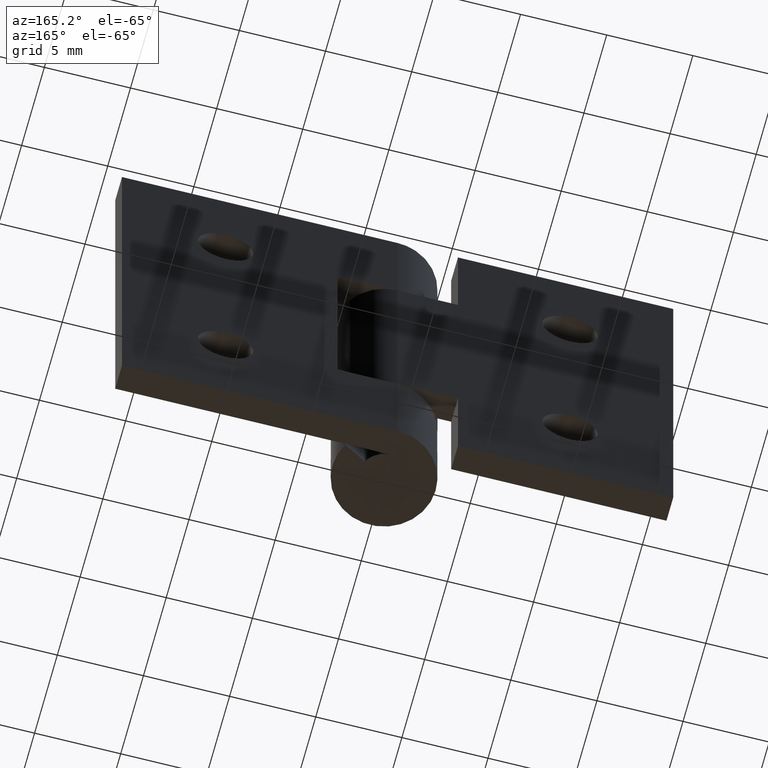
[diagram: clean part render]
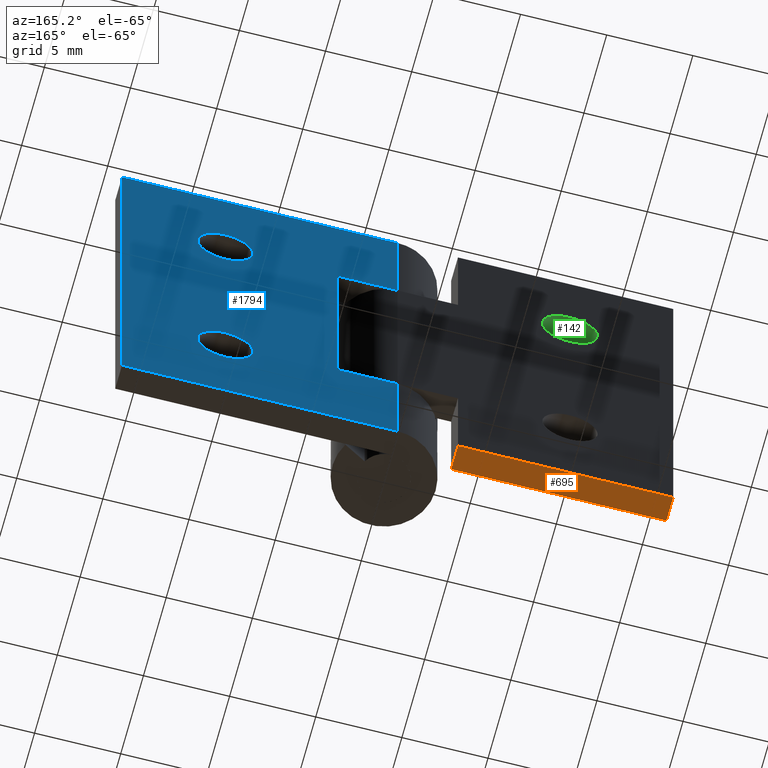
[diagram: same view with three faces highlighted in distinct colors, each labeled with its STEP entity id]
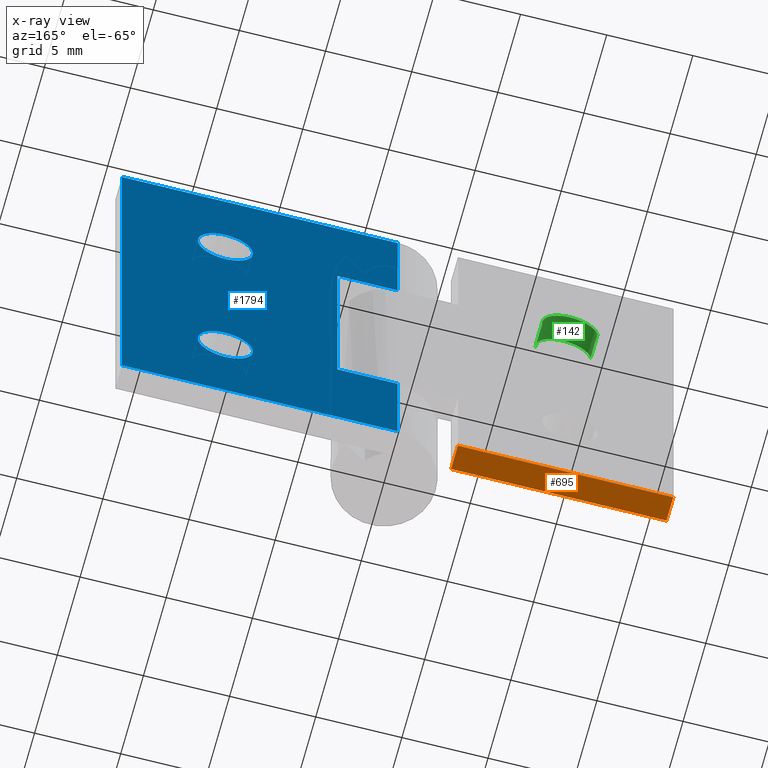
[diagram: x-ray of the same camera — body ghosted, the three highlighted faces saturated]
A machine part, auxiliary view with three faces highlighted in distinct colors.
The next image is the same camera in x-ray (body ghosted, the three faces saturated) — at least one of them is partly hidden behind the body in this view.
Their STEP definitions:

[orange] entity #695 — the highlighted face is a freeform B-spline surface patch.
#415=CARTESIAN_POINT('',(-3.500000000000000,1.500000000000000,0.0));
#416=VERTEX_POINT('',#415);
#422=CARTESIAN_POINT('',(-3.500000000000000,3.0,0.0));
#423=VERTEX_POINT('',#422);
#424=CARTESIAN_POINT('',(-3.500000000000000,1.500000000000000,0.0));
#425=CARTESIAN_POINT('',(-3.500000000000000,3.0,0.0));
#426=QUASI_UNIFORM_CURVE('',1,(#424,#425),.UNSPECIFIED.,.F.,.U.);
#427=EDGE_CURVE('',#416,#423,#426,.T.);
#625=CARTESIAN_POINT('',(-16.0,3.0,0.0));
#626=VERTEX_POINT('',#625);
#627=CARTESIAN_POINT('',(-16.0,1.500000000000000,0.0));
#628=VERTEX_POINT('',#627);
#629=CARTESIAN_POINT('',(-16.0,3.0,0.0));
#630=CARTESIAN_POINT('',(-16.0,1.500000000000000,0.0));
#631=QUASI_UNIFORM_CURVE('',1,(#629,#630),.UNSPECIFIED.,.F.,.U.);
#632=EDGE_CURVE('',#626,#628,#631,.T.);
#676=CARTESIAN_POINT('',(-16.624374975772579,1.425075002907291,0.0));
#677=CARTESIAN_POINT('',(-2.875624688951299,1.425075002907291,0.0));
#678=CARTESIAN_POINT('',(-16.624374975772579,3.074925037325845,0.0));
#679=CARTESIAN_POINT('',(-2.875624688951299,3.074925037325845,0.0));
#680=B_SPLINE_SURFACE_WITH_KNOTS('',1,1,((#676,#678),(#677,#679)),.UNSPECIFIED.,.F.,.F.,.U.,(2,2),(2,2),(0.0,13.748750286821281),(0.041708334948495,0.958291687403247),.UNSPECIFIED.);
#681=CARTESIAN_POINT('',(-3.500000000000000,3.0,0.0));
#682=CARTESIAN_POINT('',(-16.0,3.0,0.0));
#683=QUASI_UNIFORM_CURVE('',1,(#681,#682),.UNSPECIFIED.,.F.,.U.);
#684=EDGE_CURVE('',#423,#626,#683,.T.);
#685=ORIENTED_EDGE('',*,*,#684,.F.);
#686=ORIENTED_EDGE('',*,*,#427,.F.);
#687=CARTESIAN_POINT('',(-16.0,1.500000000000000,0.0));
#688=CARTESIAN_POINT('',(-3.500000000000000,1.500000000000000,0.0));
#689=QUASI_UNIFORM_CURVE('',1,(#687,#688),.UNSPECIFIED.,.F.,.U.);
#690=EDGE_CURVE('',#628,#416,#689,.T.);
#691=ORIENTED_EDGE('',*,*,#690,.F.);
#692=ORIENTED_EDGE('',*,*,#632,.F.);
#693=EDGE_LOOP('',(#685,#686,#691,#692));
#694=FACE_OUTER_BOUND('',#693,.T.);
#695=ADVANCED_FACE('',(#694),#680,.F.);

[blue] entity #1794 — the highlighted face is a freeform B-spline surface patch.
#897=CARTESIAN_POINT('',(10.0,3.0,20.600000000000001));
#898=VERTEX_POINT('',#897);
#899=CARTESIAN_POINT('',(8.404932266030210,3.0,19.125534553205380));
#900=VERTEX_POINT('',#899);
#901=CARTESIAN_POINT('',(10.0,3.0,20.600000000000001));
#902=CARTESIAN_POINT('',(8.520975213422830,3.0,20.599999999999998));
#903=CARTESIAN_POINT('',(8.404932266030210,3.000000000000000,19.125534553205387));
#911=(BOUNDED_CURVE()B_SPLINE_CURVE(2,(#901,#902,#903),.UNSPECIFIED.,.F.,.U.)B_SPLINE_CURVE_WITH_KNOTS((3,3),(0.0,0.236331300623990),.UNSPECIFIED.)CURVE()GEOMETRIC_REPRESENTATION_ITEM()RATIONAL_B_SPLINE_CURVE((1.0,0.723120658615480,0.969723356153499))REPRESENTATION_ITEM(''));
#912=EDGE_CURVE('',#898,#900,#911,.T.);
#914=CARTESIAN_POINT('',(11.595067733969790,3.0,18.874465446794620));
#915=VERTEX_POINT('',#914);
#916=CARTESIAN_POINT('',(11.595067733969787,3.000000000000000,18.874465446794613));
#917=CARTESIAN_POINT('',(11.600000000000003,3.0,18.937135828746705));
#918=CARTESIAN_POINT('',(11.600000000000000,3.0,19.0));
#919=CARTESIAN_POINT('',(11.600000000000001,3.0,20.600000000000001));
#920=CARTESIAN_POINT('',(10.0,3.0,20.600000000000001));
#928=(BOUNDED_CURVE()B_SPLINE_CURVE(2,(#916,#917,#918,#919,#920),.UNSPECIFIED.,.F.,.U.)B_SPLINE_CURVE_WITH_KNOTS((3,2,3),(0.736331300623991,0.750000000000000,1.0),.UNSPECIFIED.)CURVE()GEOMETRIC_REPRESENTATION_ITEM()RATIONAL_B_SPLINE_CURVE((0.969723356153500,0.983986122571069,1.0,0.707106781186548,1.0))REPRESENTATION_ITEM(''));
#929=EDGE_CURVE('',#915,#898,#928,.T.);
#996=CARTESIAN_POINT('',(10.0,3.0,17.399999999999999));
#997=VERTEX_POINT('',#996);
#998=CARTESIAN_POINT('',(8.404932266030210,3.000000000000000,19.125534553205384));
#999=CARTESIAN_POINT('',(8.400000000000002,3.000000000000000,19.062864171253299));
#1000=CARTESIAN_POINT('',(8.400000000000000,3.0,19.0));
#1001=CARTESIAN_POINT('',(8.400000000000000,3.0,17.400000000000002));
#1002=CARTESIAN_POINT('',(10.0,3.0,17.399999999999999));
#1010=(BOUNDED_CURVE()B_SPLINE_CURVE(2,(#998,#999,#1000,#1001,#1002),.UNSPECIFIED.,.F.,.U.)B_SPLINE_CURVE_WITH_KNOTS((3,2,3),(0.236331300623990,0.250000000000000,0.500000000000000),.UNSPECIFIED.)CURVE()GEOMETRIC_REPRESENTATION_ITEM()RATIONAL_B_SPLINE_CURVE((0.969723356153499,0.983986122571068,1.0,0.707106781186548,1.0))REPRESENTATION_ITEM(''));
#1011=EDGE_CURVE('',#900,#997,#1010,.T.);
#1045=CARTESIAN_POINT('',(10.0,3.0,17.399999999999999));
#1046=CARTESIAN_POINT('',(11.479024786577181,3.000000000000000,17.400000000000002));
#1047=CARTESIAN_POINT('',(11.595067733969788,3.0,18.874465446794620));
#1055=(BOUNDED_CURVE()B_SPLINE_CURVE(2,(#1045,#1046,#1047),.UNSPECIFIED.,.F.,.U.)B_SPLINE_CURVE_WITH_KNOTS((3,3),(0.500000000000000,0.736331300623991),.UNSPECIFIED.)CURVE()GEOMETRIC_REPRESENTATION_ITEM()RATIONAL_B_SPLINE_CURVE((1.0,0.723120658615479,0.969723356153501))REPRESENTATION_ITEM(''));
#1056=EDGE_CURVE('',#997,#915,#1055,.T.);
#1079=CARTESIAN_POINT('',(10.0,3.0,7.600000000000000));
#1080=VERTEX_POINT('',#1079);
#1081=CARTESIAN_POINT('',(8.404932266030208,3.0,6.125534553205385));
#1082=VERTEX_POINT('',#1081);
#1083=CARTESIAN_POINT('',(10.0,3.0,7.600000000000000));
#1084=CARTESIAN_POINT('',(8.520975213422826,3.000000000000000,7.599999999999999));
#1085=CARTESIAN_POINT('',(8.404932266030208,3.0,6.125534553205386));
#1093=(BOUNDED_CURVE()B_SPLINE_CURVE(2,(#1083,#1084,#1085),.UNSPECIFIED.,.F.,.U.)B_SPLINE_CURVE_WITH_KNOTS((3,3),(0.0,0.236331300623990),.UNSPECIFIED.)CURVE()GEOMETRIC_REPRESENTATION_ITEM()RATIONAL_B_SPLINE_CURVE((1.0,0.723120658615479,0.969723356153499))REPRESENTATION_ITEM(''));
#1094=EDGE_CURVE('',#1080,#1082,#1093,.T.);
#1096=CARTESIAN_POINT('',(11.595067733969790,3.0,5.874465446794615));
#1097=VERTEX_POINT('',#1096);
#1098=CARTESIAN_POINT('',(11.595067733969788,3.000000000000000,5.874465446794616));
#1099=CARTESIAN_POINT('',(11.599999999999998,3.000000000000000,5.937135828746707));
#1100=CARTESIAN_POINT('',(11.600000000000000,3.0,6.0));
#1101=CARTESIAN_POINT('',(11.600000000000001,3.0,7.600000000000000));
#1102=CARTESIAN_POINT('',(10.0,3.0,7.600000000000000));
#1110=(BOUNDED_CURVE()B_SPLINE_CURVE(2,(#1098,#1099,#1100,#1101,#1102),.UNSPECIFIED.,.F.,.U.)B_SPLINE_CURVE_WITH_KNOTS((3,2,3),(0.736331300623990,0.750000000000000,1.0),.UNSPECIFIED.)CURVE()GEOMETRIC_REPRESENTATION_ITEM()RATIONAL_B_SPLINE_CURVE((0.969723356153499,0.983986122571068,1.0,0.707106781186548,1.0))REPRESENTATION_ITEM(''));
#1111=EDGE_CURVE('',#1097,#1080,#1110,.T.);
#1178=CARTESIAN_POINT('',(10.0,3.0,4.400000000000000));
#1179=VERTEX_POINT('',#1178);
#1180=CARTESIAN_POINT('',(8.404932266030208,3.000000000000000,6.125534553205386));
#1181=CARTESIAN_POINT('',(8.400000000000000,3.0,6.062864171253294));
#1182=CARTESIAN_POINT('',(8.400000000000000,3.0,6.0));
#1183=CARTESIAN_POINT('',(8.400000000000000,3.0,4.400000000000001));
#1184=CARTESIAN_POINT('',(10.0,3.0,4.400000000000000));
#1192=(BOUNDED_CURVE()B_SPLINE_CURVE(2,(#1180,#1181,#1182,#1183,#1184),.UNSPECIFIED.,.F.,.U.)B_SPLINE_CURVE_WITH_KNOTS((3,2,3),(0.236331300623990,0.250000000000000,0.500000000000000),.UNSPECIFIED.)CURVE()GEOMETRIC_REPRESENTATION_ITEM()RATIONAL_B_SPLINE_CURVE((0.969723356153499,0.983986122571068,1.0,0.707106781186548,1.0))REPRESENTATION_ITEM(''));
#1193=EDGE_CURVE('',#1082,#1179,#1192,.T.);
#1227=CARTESIAN_POINT('',(10.0,3.0,4.400000000000000));
#1228=CARTESIAN_POINT('',(11.479024786577181,3.000000000000000,4.400000000000000));
#1229=CARTESIAN_POINT('',(11.595067733969788,3.0,5.874465446794615));
#1237=(BOUNDED_CURVE()B_SPLINE_CURVE(2,(#1227,#1228,#1229),.UNSPECIFIED.,.F.,.U.)B_SPLINE_CURVE_WITH_KNOTS((3,3),(0.500000000000000,0.736331300623991),.UNSPECIFIED.)CURVE()GEOMETRIC_REPRESENTATION_ITEM()RATIONAL_B_SPLINE_CURVE((1.0,0.723120658615479,0.969723356153501))REPRESENTATION_ITEM(''));
#1238=EDGE_CURVE('',#1179,#1097,#1237,.T.);
#1250=CARTESIAN_POINT('',(3.500000000000000,3.0,6.300003000000000));
#1251=VERTEX_POINT('',#1250);
#1257=CARTESIAN_POINT('',(0.0,3.0,6.300003000000000));
#1258=VERTEX_POINT('',#1257);
#1259=CARTESIAN_POINT('',(3.500000000000000,3.0,6.300003000000000));
#1260=CARTESIAN_POINT('',(0.0,3.0,6.300003000000000));
#1261=QUASI_UNIFORM_CURVE('',1,(#1259,#1260),.UNSPECIFIED.,.F.,.U.);
#1262=EDGE_CURVE('',#1251,#1258,#1261,.T.);
#1356=CARTESIAN_POINT('',(0.0,3.0,18.699997000000000));
#1357=VERTEX_POINT('',#1356);
#1377=CARTESIAN_POINT('',(3.500000000000000,3.0,18.699997000000000));
#1378=VERTEX_POINT('',#1377);
#1379=CARTESIAN_POINT('',(0.0,3.0,18.699997000000000));
#1380=CARTESIAN_POINT('',(3.500000000000000,3.0,18.699997000000000));
#1381=QUASI_UNIFORM_CURVE('',1,(#1379,#1380),.UNSPECIFIED.,.F.,.U.);
#1382=EDGE_CURVE('',#1357,#1378,#1381,.T.);
#1405=CARTESIAN_POINT('',(3.500000000000000,3.0,18.699997000000000));
#1406=CARTESIAN_POINT('',(3.500000000000000,3.0,6.300003000000000));
#1407=QUASI_UNIFORM_CURVE('',1,(#1405,#1406),.UNSPECIFIED.,.F.,.U.);
#1408=EDGE_CURVE('',#1378,#1251,#1407,.T.);
#1454=CARTESIAN_POINT('',(0.0,3.0,0.0));
#1455=VERTEX_POINT('',#1454);
#1475=CARTESIAN_POINT('',(16.0,3.0,0.0));
#1476=VERTEX_POINT('',#1475);
#1477=CARTESIAN_POINT('',(16.0,3.0,0.0));
#1478=CARTESIAN_POINT('',(0.0,3.0,0.0));
#1479=QUASI_UNIFORM_CURVE('',1,(#1477,#1478),.UNSPECIFIED.,.F.,.U.);
#1480=EDGE_CURVE('',#1476,#1455,#1479,.T.);
#1532=CARTESIAN_POINT('',(16.0,3.0,25.0));
#1533=VERTEX_POINT('',#1532);
#1539=CARTESIAN_POINT('',(0.0,3.0,25.0));
#1540=VERTEX_POINT('',#1539);
#1541=CARTESIAN_POINT('',(16.0,3.0,25.0));
#1542=CARTESIAN_POINT('',(0.0,3.0,25.0));
#1543=QUASI_UNIFORM_CURVE('',1,(#1541,#1542),.UNSPECIFIED.,.F.,.U.);
#1544=EDGE_CURVE('',#1533,#1540,#1543,.T.);
#1624=CARTESIAN_POINT('',(0.0,3.0,25.0));
#1625=CARTESIAN_POINT('',(0.0,3.0,18.699997000000000));
#1626=QUASI_UNIFORM_CURVE('',1,(#1624,#1625),.UNSPECIFIED.,.F.,.U.);
#1627=EDGE_CURVE('',#1540,#1357,#1626,.T.);
#1638=CARTESIAN_POINT('',(16.0,3.0,25.0));
#1639=CARTESIAN_POINT('',(16.0,3.0,0.0));
#1640=QUASI_UNIFORM_CURVE('',1,(#1638,#1639),.UNSPECIFIED.,.F.,.U.);
#1641=EDGE_CURVE('',#1533,#1476,#1640,.T.);
#1725=CARTESIAN_POINT('',(0.0,3.0,6.300003000000000));
#1726=CARTESIAN_POINT('',(0.0,3.0,0.0));
#1727=QUASI_UNIFORM_CURVE('',1,(#1725,#1726),.UNSPECIFIED.,.F.,.U.);
#1728=EDGE_CURVE('',#1258,#1455,#1727,.T.);
#1767=CARTESIAN_POINT('',(-0.799199968988895,3.0,26.248749951545150));
#1768=CARTESIAN_POINT('',(-0.799199968988895,3.0,-1.248750622097403));
#1769=CARTESIAN_POINT('',(16.799200398142339,3.0,26.248749951545150));
#1770=CARTESIAN_POINT('',(16.799200398142339,3.0,-1.248750622097403));
#1771=B_SPLINE_SURFACE_WITH_KNOTS('',1,1,((#1767,#1769),(#1768,#1770)),.UNSPECIFIED.,.F.,.F.,.U.,(2,2),(2,2),(0.0,27.497500573642551),(0.0,17.598400367131230),.UNSPECIFIED.);
#1772=ORIENTED_EDGE('',*,*,#1408,.F.);
#1773=ORIENTED_EDGE('',*,*,#1382,.F.);
#1774=ORIENTED_EDGE('',*,*,#1627,.F.);
#1775=ORIENTED_EDGE('',*,*,#1544,.F.);
#1776=ORIENTED_EDGE('',*,*,#1641,.T.);
#1777=ORIENTED_EDGE('',*,*,#1480,.T.);
#1778=ORIENTED_EDGE('',*,*,#1728,.F.);
#1779=ORIENTED_EDGE('',*,*,#1262,.F.);
#1780=EDGE_LOOP('',(#1772,#1773,#1774,#1775,#1776,#1777,#1778,#1779));
#1781=FACE_OUTER_BOUND('',#1780,.T.);
#1782=ORIENTED_EDGE('',*,*,#1238,.T.);
#1783=ORIENTED_EDGE('',*,*,#1111,.T.);
#1784=ORIENTED_EDGE('',*,*,#1094,.T.);
#1785=ORIENTED_EDGE('',*,*,#1193,.T.);
#1786=EDGE_LOOP('',(#1782,#1783,#1784,#1785));
#1787=FACE_BOUND('',#1786,.T.);
#1788=ORIENTED_EDGE('',*,*,#1056,.T.);
#1789=ORIENTED_EDGE('',*,*,#929,.T.);
#1790=ORIENTED_EDGE('',*,*,#912,.T.);
#1791=ORIENTED_EDGE('',*,*,#1011,.T.);
#1792=EDGE_LOOP('',(#1788,#1789,#1790,#1791));
#1793=FACE_BOUND('',#1792,.T.);
#1794=ADVANCED_FACE('',(#1781,#1787,#1793),#1771,.F.);

[green] entity #142 — the highlighted face is a freeform B-spline surface patch.
#44=CARTESIAN_POINT('',(-11.595067733973000,1.462499999999944,19.125534553164549));
#45=CARTESIAN_POINT('',(-11.469533180808451,1.462499999999944,20.720602287137552));
#46=CARTESIAN_POINT('',(-9.874465446835448,1.462499999999944,20.595067733973000));
#47=CARTESIAN_POINT('',(-8.279397712862446,1.462499999999944,20.469533180808455));
#48=CARTESIAN_POINT('',(-8.404932266026997,1.462499999999944,18.874465446835451));
#49=CARTESIAN_POINT('',(-11.595067733973000,3.038437500000002,19.125534553164549));
#50=CARTESIAN_POINT('',(-11.469533180808451,3.038437500000002,20.720602287137552));
#51=CARTESIAN_POINT('',(-9.874465446835448,3.038437500000002,20.595067733973000));
#52=CARTESIAN_POINT('',(-8.279397712862446,3.038437500000002,20.469533180808455));
#53=CARTESIAN_POINT('',(-8.404932266026997,3.038437500000002,18.874465446835451));
#61=(BOUNDED_SURFACE()B_SPLINE_SURFACE(2,1,((#44,#49),(#45,#50),(#46,#51),(#47,#52),(#48,#53)),.UNSPECIFIED.,.F.,.F.,.U.)B_SPLINE_SURFACE_WITH_KNOTS((3,2,3),(2,2),(3.141592653589793,4.712388980384690,6.283185307179586),(0.0,1.0),.UNSPECIFIED.)GEOMETRIC_REPRESENTATION_ITEM()RATIONAL_B_SPLINE_SURFACE(((1.0,1.0),(0.707106781186548,0.707106781186548),(1.0,1.0),(0.707106781186548,0.707106781186548),(1.0,1.0)))REPRESENTATION_ITEM('')SURFACE());
#62=CARTESIAN_POINT('',(-10.0,3.0,20.600000000000001));
#63=VERTEX_POINT('',#62);
#64=CARTESIAN_POINT('',(-11.595067733969790,3.0,19.125534553205380));
#65=VERTEX_POINT('',#64);
#66=CARTESIAN_POINT('',(-10.0,3.0,20.600000000000001));
#67=CARTESIAN_POINT('',(-11.479024786577170,3.0,20.599999999999998));
#68=CARTESIAN_POINT('',(-11.595067733969794,3.000000000000000,19.125534553205387));
#76=(BOUNDED_CURVE()B_SPLINE_CURVE(2,(#66,#67,#68),.UNSPECIFIED.,.F.,.U.)B_SPLINE_CURVE_WITH_KNOTS((3,3),(0.0,0.236331300623990),.UNSPECIFIED.)CURVE()GEOMETRIC_REPRESENTATION_ITEM()RATIONAL_B_SPLINE_CURVE((1.0,0.723120658615480,0.969723356153499))REPRESENTATION_ITEM(''));
#77=EDGE_CURVE('',#63,#65,#76,.T.);
#78=ORIENTED_EDGE('',*,*,#77,.F.);
#79=CARTESIAN_POINT('',(-8.404932266030210,3.0,18.874465446794620));
#80=VERTEX_POINT('',#79);
#81=CARTESIAN_POINT('',(-8.404932266030210,3.0,18.874465446794616));
#82=CARTESIAN_POINT('',(-8.400000000000000,3.000000000000000,18.937135828746708));
#83=CARTESIAN_POINT('',(-8.400000000000000,3.0,19.0));
#84=CARTESIAN_POINT('',(-8.400000000000000,3.0,20.600000000000001));
#85=CARTESIAN_POINT('',(-10.0,3.0,20.600000000000001));
#93=(BOUNDED_CURVE()B_SPLINE_CURVE(2,(#81,#82,#83,#84,#85),.UNSPECIFIED.,.F.,.U.)B_SPLINE_CURVE_WITH_KNOTS((3,2,3),(0.736331300623990,0.750000000000000,1.0),.UNSPECIFIED.)CURVE()GEOMETRIC_REPRESENTATION_ITEM()RATIONAL_B_SPLINE_CURVE((0.969723356153500,0.983986122571069,1.0,0.707106781186548,1.0))REPRESENTATION_ITEM(''));
#94=EDGE_CURVE('',#80,#63,#93,.T.);
#95=ORIENTED_EDGE('',*,*,#94,.F.);
#96=CARTESIAN_POINT('',(-8.404932266030210,1.499999999999946,18.874465446794620));
#97=VERTEX_POINT('',#96);
#98=CARTESIAN_POINT('',(-8.404932266030210,1.499999999999946,18.874465446794620));
#99=CARTESIAN_POINT('',(-8.404932266030210,3.0,18.874465446794620));
#100=QUASI_UNIFORM_CURVE('',1,(#98,#99),.UNSPECIFIED.,.F.,.U.);
#101=EDGE_CURVE('',#97,#80,#100,.T.);
#102=ORIENTED_EDGE('',*,*,#101,.F.);
#103=CARTESIAN_POINT('',(-10.0,1.499999999999946,20.600000000000001));
#104=VERTEX_POINT('',#103);
#105=CARTESIAN_POINT('',(-8.404932266030210,1.499999999999946,18.874465446794613));
#106=CARTESIAN_POINT('',(-8.400000000000002,1.499999999999946,18.937135828746708));
#107=CARTESIAN_POINT('',(-8.400000000000000,1.499999999999946,19.0));
#108=CARTESIAN_POINT('',(-8.400000000000000,1.499999999999946,20.600000000000001));
#109=CARTESIAN_POINT('',(-10.0,1.499999999999946,20.600000000000001));
#117=(BOUNDED_CURVE()B_SPLINE_CURVE(2,(#105,#106,#107,#108,#109),.UNSPECIFIED.,.F.,.U.)B_SPLINE_CURVE_WITH_KNOTS((3,2,3),(0.736331300623991,0.750000000000000,1.0),.UNSPECIFIED.)CURVE()GEOMETRIC_REPRESENTATION_ITEM()RATIONAL_B_SPLINE_CURVE((0.969723356153500,0.983986122571069,1.0,0.707106781186548,1.0))REPRESENTATION_ITEM(''));
#118=EDGE_CURVE('',#97,#104,#117,.T.);
#119=ORIENTED_EDGE('',*,*,#118,.T.);
#120=CARTESIAN_POINT('',(-11.595067733969790,1.499999999999946,19.125534553205380));
#121=VERTEX_POINT('',#120);
#122=CARTESIAN_POINT('',(-10.0,1.499999999999946,20.600000000000001));
#123=CARTESIAN_POINT('',(-11.479024786577176,1.499999999999946,20.599999999999994));
#124=CARTESIAN_POINT('',(-11.595067733969788,1.499999999999946,19.125534553205384));
#132=(BOUNDED_CURVE()B_SPLINE_CURVE(2,(#122,#123,#124),.UNSPECIFIED.,.F.,.U.)B_SPLINE_CURVE_WITH_KNOTS((3,3),(0.0,0.236331300623990),.UNSPECIFIED.)CURVE()GEOMETRIC_REPRESENTATION_ITEM()RATIONAL_B_SPLINE_CURVE((1.0,0.723120658615479,0.969723356153499))REPRESENTATION_ITEM(''));
#133=EDGE_CURVE('',#104,#121,#132,.T.);
#134=ORIENTED_EDGE('',*,*,#133,.T.);
#135=CARTESIAN_POINT('',(-11.595067733969790,1.499999999999946,19.125534553205380));
#136=CARTESIAN_POINT('',(-11.595067733969790,3.0,19.125534553205380));
#137=QUASI_UNIFORM_CURVE('',1,(#135,#136),.UNSPECIFIED.,.F.,.U.);
#138=EDGE_CURVE('',#121,#65,#137,.T.);
#139=ORIENTED_EDGE('',*,*,#138,.T.);
#140=EDGE_LOOP('',(#78,#95,#102,#119,#134,#139));
#141=FACE_OUTER_BOUND('',#140,.T.);
#142=ADVANCED_FACE('',(#141),#61,.F.);